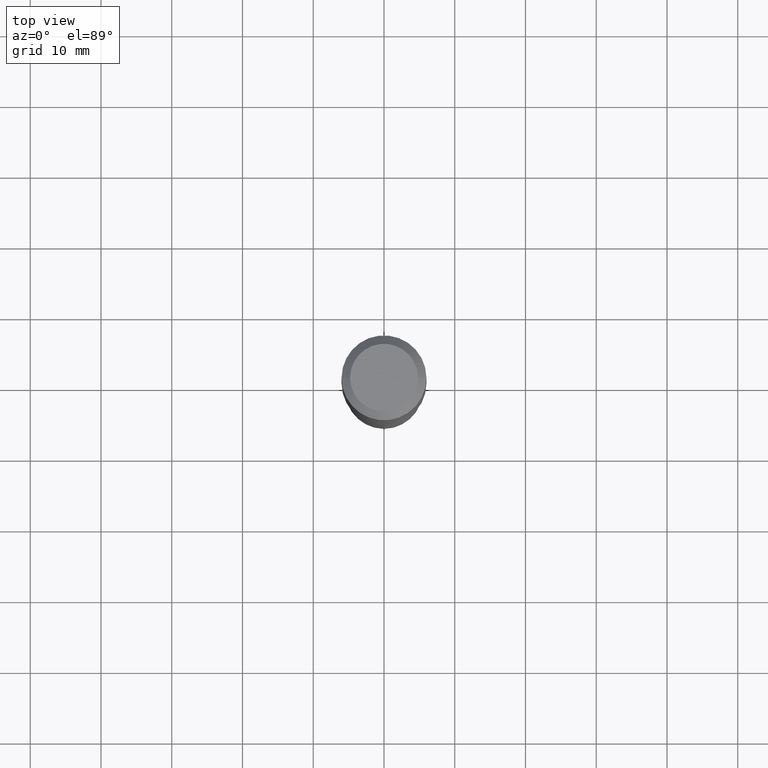
[diagram: clean part render]
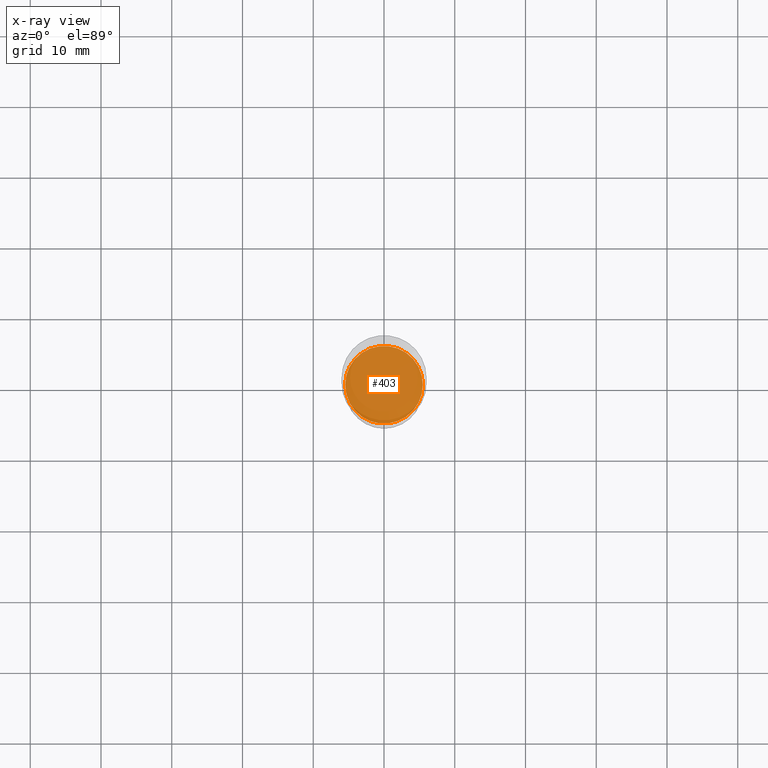
[diagram: x-ray — body ghosted, one internal face saturated and labeled with its STEP entity id]
A machine part, top view, then the same camera in x-ray: the body is ghosted and one INTERNAL B-rep face — a face not visible from any outside direction — is saturated and labeled: STEP entity #403.
In plain terms, the highlighted planar face has unit normal (-0, 0, 1).
Its self-contained STEP definition (entity closure, byte-faithful):
#74 = AXIS2_PLACEMENT_3D ( 'NONE', #239, #446, #385 ) ;
#96 = CIRCLE ( 'NONE', #294, 0.2160500000000000198 ) ;
#100 = PLANE ( 'NONE',  #74 ) ;
#121 = AXIS2_PLACEMENT_3D ( 'NONE', #198, #467, #415 ) ;
#127 = FACE_OUTER_BOUND ( 'NONE', #245, .T. ) ;
#177 = EDGE_CURVE ( 'NONE', #238, #410, #207, .T. ) ;
#198 = CARTESIAN_POINT ( 'NONE',  ( 5.583983472043140562E-29, -7.972448489114438042E-15, -2.283399999999999874 ) ) ;
#207 = CIRCLE ( 'NONE', #121, 0.2160500000000000198 ) ;
#224 = CARTESIAN_POINT ( 'NONE',  ( 5.583983472043140562E-29, -7.972448489114438042E-15, -2.283399999999999874 ) ) ;
#238 = VERTEX_POINT ( 'NONE', #471 ) ;
#239 = CARTESIAN_POINT ( 'NONE',  ( 5.583983472043140562E-29, -7.972448489114438042E-15, -2.283399999999999874 ) ) ;
#245 = EDGE_LOOP ( 'NONE', ( #363, #396 ) ) ;
#294 = AXIS2_PLACEMENT_3D ( 'NONE', #224, #429, #304 ) ;
#304 = DIRECTION ( 'NONE',  ( 1.000000000000000000, -6.982962677686271444E-15, 0.000000000000000000 ) ) ;
#363 = ORIENTED_EDGE ( 'NONE', *, *, #418, .F. ) ;
#385 = DIRECTION ( 'NONE',  ( 1.000000000000000000, -6.982962677686265922E-15, 4.876176775795935793E-29 ) ) ;
#389 = CARTESIAN_POINT ( 'NONE',  ( 0.2160500000000000198, -9.481117575628557435E-15, -2.283399999999999874 ) ) ;
#396 = ORIENTED_EDGE ( 'NONE', *, *, #177, .F. ) ;
#403 = ADVANCED_FACE ( 'NONE', ( #127 ), #100, .F. ) ;
#410 = VERTEX_POINT ( 'NONE', #389 ) ;
#415 = DIRECTION ( 'NONE',  ( 1.000000000000000000, -6.982962677686271444E-15, 0.000000000000000000 ) ) ;
#418 = EDGE_CURVE ( 'NONE', #410, #238, #96, .T. ) ;
#429 = DIRECTION ( 'NONE',  ( -2.445468806185136597E-29, 3.491481338843145583E-15, 1.000000000000000000 ) ) ;
#446 = DIRECTION ( 'NONE',  ( -2.438088387897960049E-29, 3.491481338843145188E-15, 1.000000000000000000 ) ) ;
#467 = DIRECTION ( 'NONE',  ( -2.445468806185136597E-29, 3.491481338843145583E-15, 1.000000000000000000 ) ) ;
#471 = CARTESIAN_POINT ( 'NONE',  ( -0.2160500000000000198, -6.434671681330630643E-15, -2.283399999999999874 ) ) ;